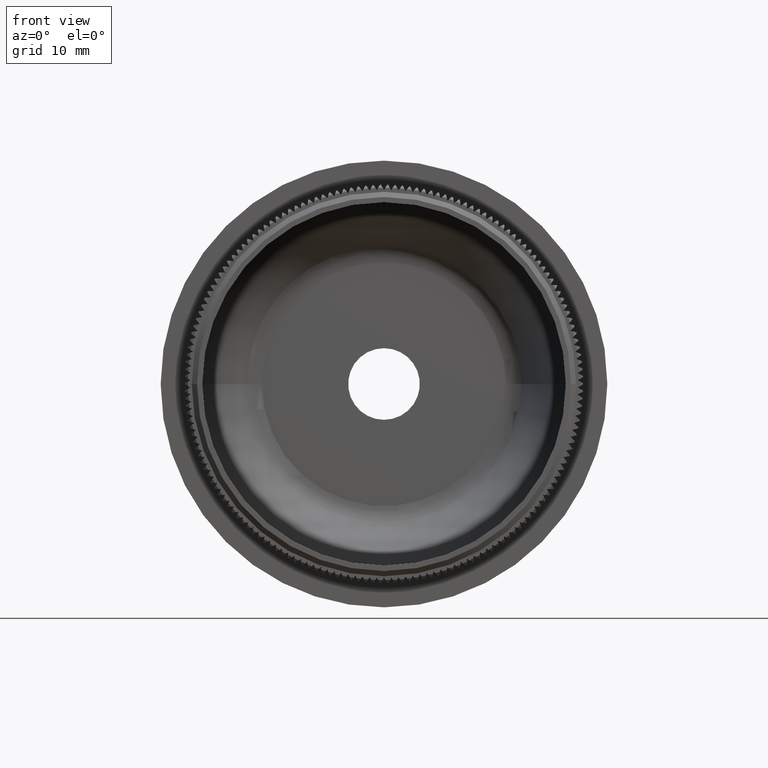
[diagram: clean part render]
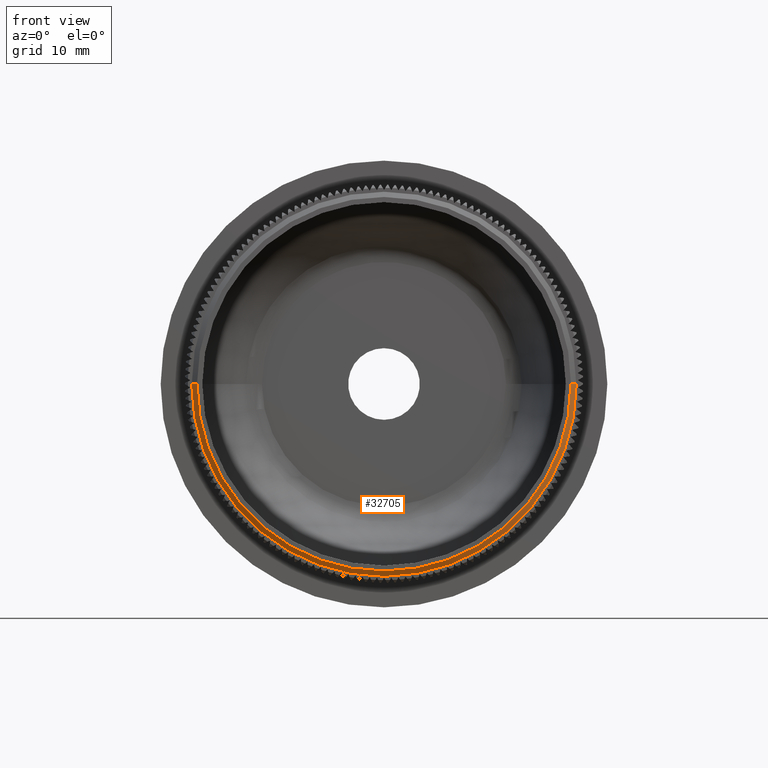
[diagram: same view with one face highlighted and labeled with its STEP entity id]
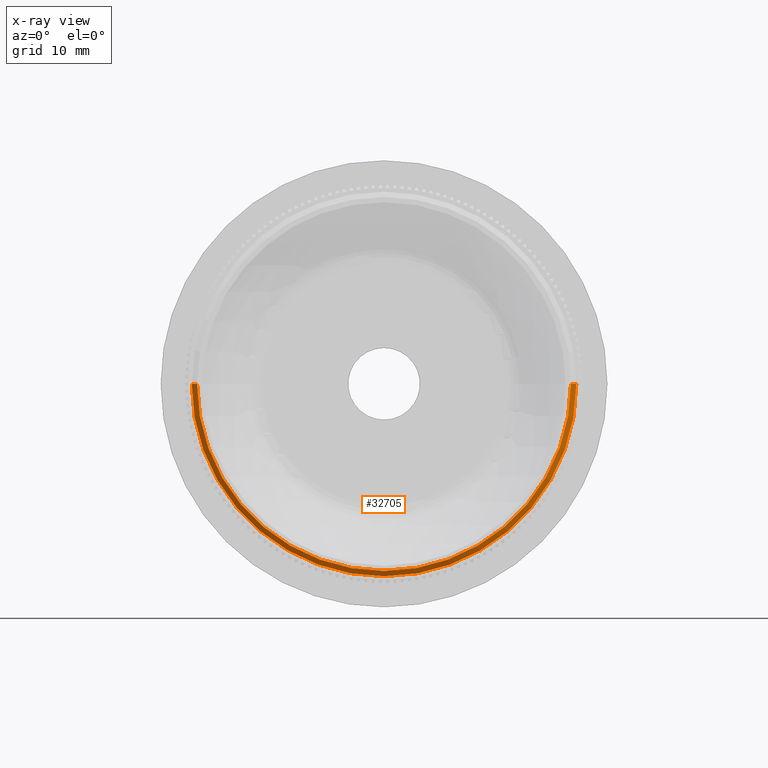
[diagram: x-ray of the same camera — body ghosted, the highlighted face saturated]
A machine part, front view. The second image highlights one B-rep face of the part: STEP entity #32705.
The next image is the same camera in x-ray: the body ghosted, the highlighted face saturated — about 0% of this face is hidden behind the body in this view.
In plain terms, the highlighted conical surface has half-angle 45 deg.
Its self-contained STEP definition (entity closure, byte-faithful):
#3611 = CONICAL_SURFACE ( 'NONE', #31823, 17.75000000000001800, 0.7853981633974587200 ) ;
#6554 = VERTEX_POINT ( 'NONE', #20247 ) ;
#7313 = DIRECTION ( 'NONE',  ( 1.000000000000000000, -1.390155114310177800E-015, 0.0000000000000000000 ) ) ;
#7335 = CARTESIAN_POINT ( 'NONE',  ( -18.25000000000008900, 0.5000000000000675000, 2.234980408443925500E-015 ) ) ;
#7646 = VERTEX_POINT ( 'NONE', #7335 ) ;
#8565 = CARTESIAN_POINT ( 'NONE',  ( -4.472025732837081300E-014, 2.775557561562891400E-014, 0.0000000000000000000 ) ) ;
#8769 = DIRECTION ( 'NONE',  ( 1.000000000000000000, -1.388827867340710200E-015, 0.0000000000000000000 ) ) ;
#10078 = EDGE_CURVE ( 'NONE', #19195, #6554, #26993, .T. ) ;
#10257 = CARTESIAN_POINT ( 'NONE',  ( 17.74999999999997500, 3.103880970331365800E-015, 2.173748068486554400E-015 ) ) ;
#10401 = CARTESIAN_POINT ( 'NONE',  ( -17.75000000000006000, 4.905593268611951100E-014, 0.0000000000000000000 ) ) ;
#11350 = DIRECTION ( 'NONE',  ( -1.388827867340710000E-015, -1.000000000000000000, -0.0000000000000000000 ) ) ;
#11679 = CARTESIAN_POINT ( 'NONE',  ( -17.75000000000006400, 5.240727026092646700E-014, 0.0000000000000000000 ) ) ;
#11950 = VECTOR ( 'NONE', #20304, 1000.000000000000000 ) ;
#12326 = ORIENTED_EDGE ( 'NONE', *, *, #18227, .F. ) ;
#12654 = CARTESIAN_POINT ( 'NONE',  ( 17.74999999999997200, -2.474566044757414800E-016, 2.204364238465239400E-015 ) ) ;
#13509 = AXIS2_PLACEMENT_3D ( 'NONE', #33765, #24998, #7313 ) ;
#18148 = ORIENTED_EDGE ( 'NONE', *, *, #24741, .T. ) ;
#18227 = EDGE_CURVE ( 'NONE', #18594, #19195, #19732, .T. ) ;
#18594 = VERTEX_POINT ( 'NONE', #10401 ) ;
#18655 = EDGE_CURVE ( 'NONE', #6554, #7646, #27560, .T. ) ;
#19195 = VERTEX_POINT ( 'NONE', #12654 ) ;
#19732 = CIRCLE ( 'NONE', #21640, 17.75000000000001400 ) ;
#19771 = DIRECTION ( 'NONE',  ( 1.388827867340705400E-015, 1.000000000000000000, 0.0000000000000000000 ) ) ;
#20247 = CARTESIAN_POINT ( 'NONE',  ( 18.25000000000000000, 0.5000000000000166500, 0.0000000000000000000 ) ) ;
#20304 = DIRECTION ( 'NONE',  ( -0.7071067811865539000, 0.7071067811865411300, 0.0000000000000000000 ) ) ;
#21640 = AXIS2_PLACEMENT_3D ( 'NONE', #29294, #11350, #8769 ) ;
#24741 = EDGE_CURVE ( 'NONE', #18594, #7646, #35463, .T. ) ;
#24998 = DIRECTION ( 'NONE',  ( 1.388827867340705400E-015, 1.000000000000000000, 0.0000000000000000000 ) ) ;
#25714 = EDGE_LOOP ( 'NONE', ( #32839, #12326, #18148, #33651 ) ) ;
#26993 = LINE ( 'NONE', #10257, #36638 ) ;
#27560 = CIRCLE ( 'NONE', #13509, 18.25000000000004300 ) ;
#28091 = FACE_OUTER_BOUND ( 'NONE', #25714, .T. ) ;
#29294 = CARTESIAN_POINT ( 'NONE',  ( -4.472025732837082000E-014, 2.440423804082188200E-014, 0.0000000000000000000 ) ) ;
#29612 = DIRECTION ( 'NONE',  ( -1.000000000000000000, 1.388827867340705600E-015, 0.0000000000000000000 ) ) ;
#31823 = AXIS2_PLACEMENT_3D ( 'NONE', #8565, #19771, #29612 ) ;
#32705 = ADVANCED_FACE ( 'NONE', ( #28091 ), #3611, .T. ) ;
#32839 = ORIENTED_EDGE ( 'NONE', *, *, #10078, .F. ) ;
#33510 = DIRECTION ( 'NONE',  ( 0.7071067811865559000, 0.7071067811865392500, 8.659560562355024100E-017 ) ) ;
#33651 = ORIENTED_EDGE ( 'NONE', *, *, #18655, .F. ) ;
#33765 = CARTESIAN_POINT ( 'NONE',  ( -4.402584339470043900E-014, 0.5000000000000420800, 0.0000000000000000000 ) ) ;
#35463 = LINE ( 'NONE', #11679, #11950 ) ;
#36638 = VECTOR ( 'NONE', #33510, 999.9999999999998900 ) ;